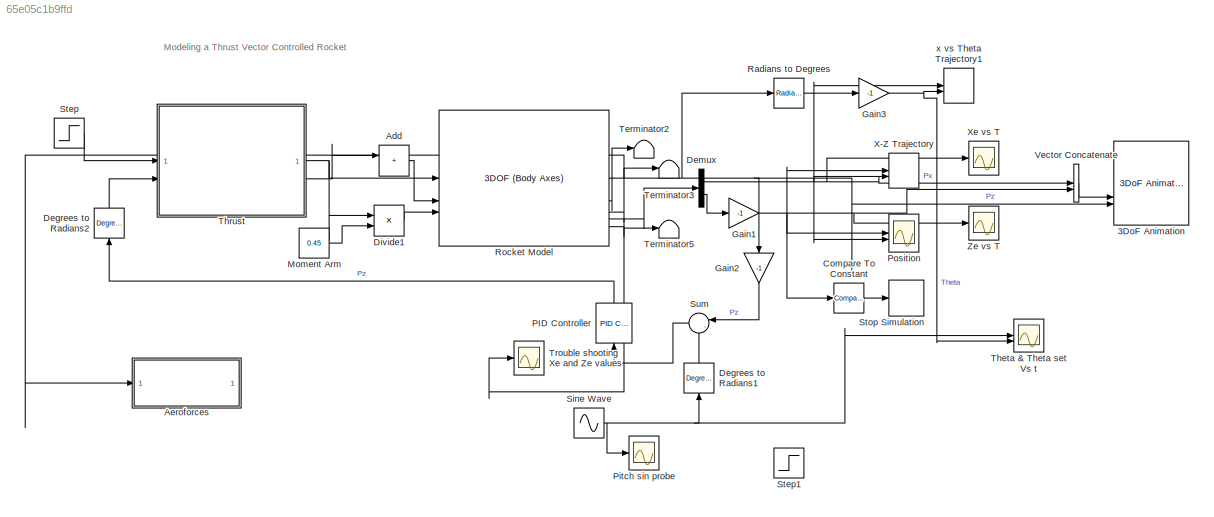
MODEL slx_65e05c1b9ffd
KIND model
CONFIG AbsTol = auto
CONFIG EnableMultiTasking = off
CONFIG FixedStep = auto
CONFIG MaxStep = auto
CONFIG MinStep = auto
CONFIG RelTol = 1e-3
CONFIG SampleTimeConstraint = Unconstrained
CONFIG SolverName = VariableStepAuto
CONFIG StartTime = 0.0
CONFIG StopTime = 2000
BLOCK [Reference] 3DoF Animation  REF=aerolibanim/3DoF Animation
  SourceBlock = aerolibanim/3DoF Animation
  SourceType = 3DoF_Animation
BLOCK [Sum] Add
  IconShape = rectangular
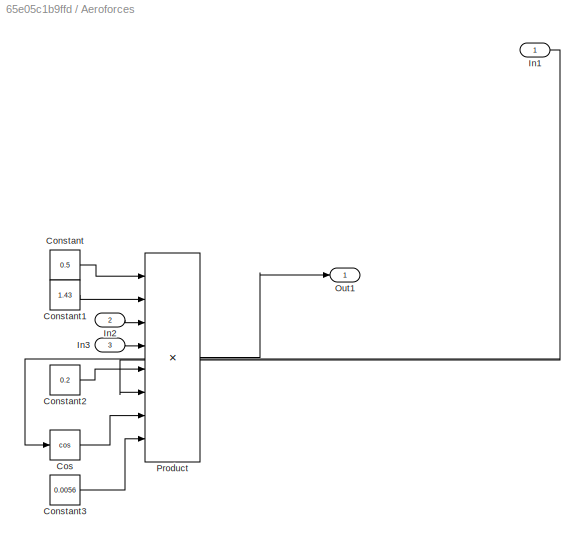
BLOCK [SubSystem] Aeroforces
BLOCK [Constant] Aeroforces/Constant
  Value = 0.5
BLOCK [Constant] Aeroforces/Constant1
  Value = 1.43
BLOCK [Constant] Aeroforces/Constant2
  Value = 0.2
BLOCK [Constant] Aeroforces/Constant3
  Value = 0.0056
BLOCK [Trigonometry] Aeroforces/Cos
  Operator = cos
BLOCK [Inport] Aeroforces/In1
BLOCK [Inport] Aeroforces/In2
  Port = 2
BLOCK [Inport] Aeroforces/In3
  Port = 3
BLOCK [Outport] Aeroforces/Out1
BLOCK [Product] Aeroforces/Product
  Inputs = 8
BLOCK [Reference] Compare To Constant  REF=simulink/Logic and Bit
Operations/Compare
To Constant
  SourceBlock = simulink/Logic and Bit\nOperations/Compare\nTo Constant
  SourceType = Compare To Constant
BLOCK [Reference] Degrees to Radians1  REF=simulink_extras/Transformations/Degrees to
Radians
  NameLocation = right
  SourceBlock = simulink_extras/Transformations/Degrees to\nRadians
  SourceType = DegreesToRadians
BLOCK [Reference] Degrees to Radians2  REF=simulink_extras/Transformations/Degrees to
Radians
  NameLocation = right
  SourceBlock = simulink_extras/Transformations/Degrees to\nRadians
  SourceType = DegreesToRadians
BLOCK [Demux] Demux
  Outputs = 2
BLOCK [Product] Divide1
  Inputs = **
BLOCK [Gain] Gain1
  Gain = -1
BLOCK [Gain] Gain2
  Gain = -1
  NameLocation = left
BLOCK [Gain] Gain3
  Gain = -1
BLOCK [Constant] Moment Arm 
  Value = 0.45
BLOCK [Reference] PID Controller  REF=slpidlib/PID Controller
  LibrarySourceBlock = simulink/Continuous/PID Controller
  SourceBlock = slpidlib/PID Controller
  SourceType = PID 1dof
BLOCK [Scope] Pitch sin probe
  Floating = off
  NumInputPorts = 1
  ScopeSpecificationString = Simulink.scopes.TimeScopeBlockCfg('CurrentConfiguration', extmgr.ConfigurationSet(extmgr.Configuration('Core','General UI',true),extmgr.Configuration('Core','Source UI',true),extmgr.Configuration('Sources','WiredSimulink',true,'DataLoggingVariableName','ScopeData1'),extmgr.Configuration('Visuals','Time Domain',true,'SerializedDisplays',{struct('MinYLimReal','-11.25','MaxYLimReal','101.25','YLabelR...<+1550ch>
BLOCK [Scope] Position
  Floating = off
  NumInputPorts = 2
  ScopeSpecificationString = Simulink.scopes.TimeScopeBlockCfg('CurrentConfiguration', extmgr.ConfigurationSet(extmgr.Configuration('Core','General UI',true),extmgr.Configuration('Core','Source UI',true),extmgr.Configuration('Sources','WiredSimulink',true),extmgr.Configuration('Visuals','Time Domain',true,'SerializedDisplays',{struct('MinYLimReal','256117.1749','MaxYLimReal','257181.08338','YLabelReal','','MinYLimMag','256117...<+2263ch>
BLOCK [Reference] Radians to Degrees  REF=simulink_extras/Transformations/Radians
to Degrees
  SourceBlock = simulink_extras/Transformations/Radians\nto Degrees
  SourceType = RadiansToDegrees
BLOCK [Reference] Rocket Model  REF=shared3dof/3DOF (Body Axes)
  SourceBlock = shared3dof/3DOF (Body Axes)
  SourceType = 3DOF EoM
BLOCK [Sin] Sine Wave
  Amplitude = 90
  Frequency = 2*3.14/1600
  SampleTime = 0
BLOCK [Step] Step
  After = 0
  Before = -15
  SampleTime = 0
  Time = 200
BLOCK [Step] Step1
  After = 45
  Before = 5
  NameLocation = right
  SampleTime = 0
  Time = 30
BLOCK [Stop] Stop Simulation
BLOCK [Sum] Sum
  Inputs = |-+
  NameLocation = top
BLOCK [Terminator] Terminator2
BLOCK [Terminator] Terminator3
BLOCK [Terminator] Terminator5
BLOCK [Scope] Theta & Theta set  Vs t
  Floating = off
  NumInputPorts = 2
  ScopeSpecificationString = Simulink.scopes.TimeScopeBlockCfg('CurrentConfiguration', extmgr.ConfigurationSet(extmgr.Configuration('Core','General UI',true),extmgr.Configuration('Core','Source UI',true),extmgr.Configuration('Sources','WiredSimulink',true,'DataLoggingVariableName','ScopeData1'),extmgr.Configuration('Visuals','Time Domain',true,'SerializedDisplays',{struct('MinYLimReal','-17.21247','MaxYLimReal','154.91227','Y...<+1569ch>
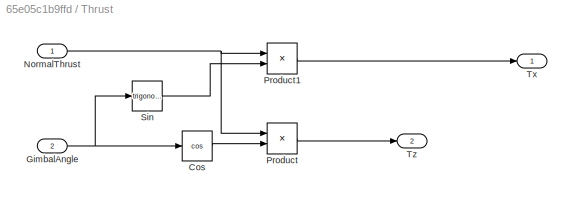
BLOCK [SubSystem] Thrust
BLOCK [Trigonometry] Thrust/Cos
  Operator = cos
BLOCK [Inport] Thrust/GimbalAngle
  Port = 2
BLOCK [Inport] Thrust/NormalThrust
BLOCK [Product] Thrust/Product
  RndMeth = Zero
BLOCK [Product] Thrust/Product1
  RndMeth = Zero
BLOCK [Trigonometry] Thrust/Sin
BLOCK [Outport] Thrust/Tx
BLOCK [Outport] Thrust/Tz
  Port = 2
BLOCK [Scope] Trouble shooting Xe and Ze values
  Floating = off
  NumInputPorts = 1
  ScopeSpecificationString = Simulink.scopes.TimeScopeBlockCfg('CurrentConfiguration', extmgr.ConfigurationSet(extmgr.Configuration('Core','General UI',true),extmgr.Configuration('Core','Source UI',true),extmgr.Configuration('Sources','WiredSimulink',true,'DataLoggingVariableName','ScopeData1'),extmgr.Configuration('Visuals','Time Domain',true,'SerializedDisplays',{struct('MinYLimReal','-210224.20163','MaxYLimReal','930162.53...<+1596ch>
BLOCK [Concatenate] Vector Concatenate
BLOCK [Record] X-Z Trajectory
  CompatibilityTag = XY
  FileSettingsInternal = {"entries":[{"content":{"excelSettings":{"content":{},"type":"Streamout.ExcelSettings"}},"type":"Streamout.FileSettingStorage","uuid":""}],"packageUris":["http:\/\/schema.mathworks.com\/mf0\/streamout_blocks\/R2020a"],"version":"1.0"}
  Layout = [1 1]
  SignalsInternal = {"entries":[{"content":{"signals":[{"content":{"blockPath":[],"dimensions":[1],"domain":"","lineColor":"#fe330a","lineWidth":2,"plots":[ 1 ],"port":1,"sid":[""],"signalID":1,"signalName":"Px"},"type":"RecordBlkView.Signal","uuid":""},{"content":{"blockPath":[],"dimensions":[1],"domain":"","lineColor":"#22b573","lineWidth":2,"plots":[ 1 ],"port":2,"sid":[""],"signalID":2,"signalName":"Pz"},"type":"...<+178ch>
  VisualizationBindings = {"xyplotplugin":{"info":[{"series":[{"bindingParametersList":[{"parameter":"X-Axis","signalID":1,"signalName":"Px"},{"parameter":"Y-Axis","signalID":2,"signalName":"Pz"}],"seriesID":0}],"subplotID":1}]}}
  st = -1
BLOCK [Scope] Xe vs T
  Floating = off
  NumInputPorts = 1
  ScopeSpecificationString = Simulink.scopes.TimeScopeBlockCfg('CurrentConfiguration', extmgr.ConfigurationSet(extmgr.Configuration('Core','General UI',true),extmgr.Configuration('Core','Source UI',true),extmgr.Configuration('Sources','WiredSimulink',true,'DataLoggingVariableName','ScopeData2'),extmgr.Configuration('Visuals','Time Domain',true,'SerializedDisplays',{struct('MinYLimReal','-973.77147','MaxYLimReal','8762.7742','...<+1545ch>
BLOCK [Scope] Ze vs T
  Floating = off
  NumInputPorts = 1
  ScopeSpecificationString = Simulink.scopes.TimeScopeBlockCfg('CurrentConfiguration', extmgr.ConfigurationSet(extmgr.Configuration('Core','General UI',true),extmgr.Configuration('Core','Source UI',true),extmgr.Configuration('Sources','WiredSimulink',true,'DataLoggingVariableName','ScopeData3'),extmgr.Configuration('Visuals','Time Domain',true,'SerializedDisplays',{struct('MinYLimReal','-45226.61798','MaxYLimReal','407039.555...<+1559ch>
BLOCK [Record] x vs Theta Trajectory1
  CompatibilityTag = XY
  FileSettingsInternal = {"entries":[{"content":{"excelSettings":{"content":{},"type":"Streamout.ExcelSettings"}},"type":"Streamout.FileSettingStorage","uuid":""}],"packageUris":["http:\/\/schema.mathworks.com\/mf0\/streamout_blocks\/R2020a"],"version":"1.0"}
  Layout = [1 1]
  SignalsInternal = {"entries":[{"content":{"signals":[{"content":{"blockPath":[],"dimensions":[1],"domain":"","lineColor":"#0072bd","lineWidth":2,"port":1,"sid":[""],"signalID":1,"signalName":"Px"},"type":"RecordBlkView.Signal","uuid":""},{"content":{"blockPath":[],"dimensions":[1],"domain":"","lineColor":"#d95319","lineWidth":2,"plots":[ 1 ],"port":2,"sid":[""],"signalID":2,"signalName":"Theta"},"type":"RecordBlkVi...<+167ch>
  VisualizationBindings = {"xyplotplugin":{"info":[{"series":[{"bindingParametersList":[{"parameter":"Y-Axis","signalID":2,"signalName":"Theta"}],"seriesID":0}],"subplotID":1}]}}
  st = -1
ANNOTATION (root): Modeling a Thrust Vector Controlled Rocket
LINE Add:1 -> Rocket Model:2
LINE Aeroforces/Constant1:1 -> Aeroforces/Product:2
LINE Aeroforces/Constant2:1 -> Aeroforces/Product:5
LINE Aeroforces/Constant3:1 -> Aeroforces/Product:8
LINE Aeroforces/Constant:1 -> Aeroforces/Product:1
LINE Aeroforces/Cos:1 -> Aeroforces/Product:7
NET Aeroforces/In1:1 -> Aeroforces/Cos:1, Aeroforces/Product:6
LINE Aeroforces/In2:1 -> Aeroforces/Product:3
LINE Aeroforces/In3:1 -> Aeroforces/Product:4
LINE Aeroforces/Product:1 -> Aeroforces/Out1:1
LINE Compare To Constant:1 -> Stop Simulation:1
LINE Degrees to Radians1:1 -> Sum:2
LINE Degrees to Radians2:1 -> Thrust:2
NET Demux:1 -> Position:1, Vector Concatenate:1, X-Z Trajectory:1, Xe vs T:1, x vs Theta Trajectory1:1
LINE Demux:2 -> Gain1:1
LINE Divide1:1 -> Rocket Model:3
NET Gain1:1 -> Compare To Constant:1, Position:2, Vector Concatenate:2, X-Z Trajectory:2, Ze vs T:1
LINE Gain2:1 -> Sum:1
NET Gain3:1 -> Theta & Theta set  Vs t:2, x vs Theta Trajectory1:2
LINE Moment Arm :1 -> Divide1:2
LINE PID Controller:1 -> Degrees to Radians2:1
LINE Radians to Degrees:1 -> Gain3:1
NET Rocket Model:1 -> 3DoF Animation:3, Aeroforces:1, Gain2:1, Radians to Degrees:1
LINE Rocket Model:2 -> Terminator2:1
LINE Rocket Model:3 -> Terminator3:1
NET Rocket Model:4 -> Demux:1, Trouble shooting Xe and Ze values:1
LINE Rocket Model:6 -> Terminator5:1
NET Sine Wave:1 -> Degrees to Radians1:1, Pitch sin probe:1, Theta & Theta set  Vs t:1
LINE Step:1 -> Thrust:1
LINE Sum:1 -> PID Controller:1
LINE Thrust/Cos:1 -> Thrust/Product:2
NET Thrust/GimbalAngle:1 -> Thrust/Cos:1, Thrust/Sin:1
NET Thrust/NormalThrust:1 -> Thrust/Product1:1, Thrust/Product:1
LINE Thrust/Product1:1 -> Thrust/Tx:1
LINE Thrust/Product:1 -> Thrust/Tz:1
LINE Thrust/Sin:1 -> Thrust/Product1:2
NET Thrust:1 -> Divide1:1, Rocket Model:1
LINE Thrust:2 -> Add:1
LINE Vector Concatenate:1 -> 3DoF Animation:2
note: NET lines group one-source signal fan-out (src -> all destinations, sorted); 1:1 wires keep LINE
